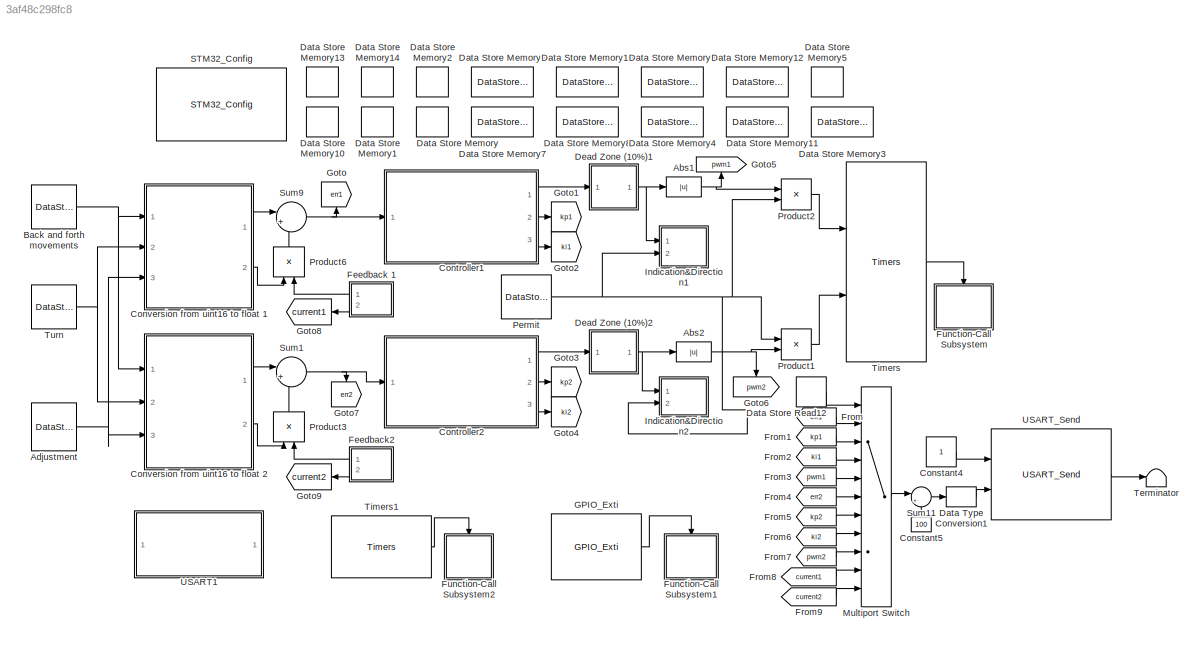
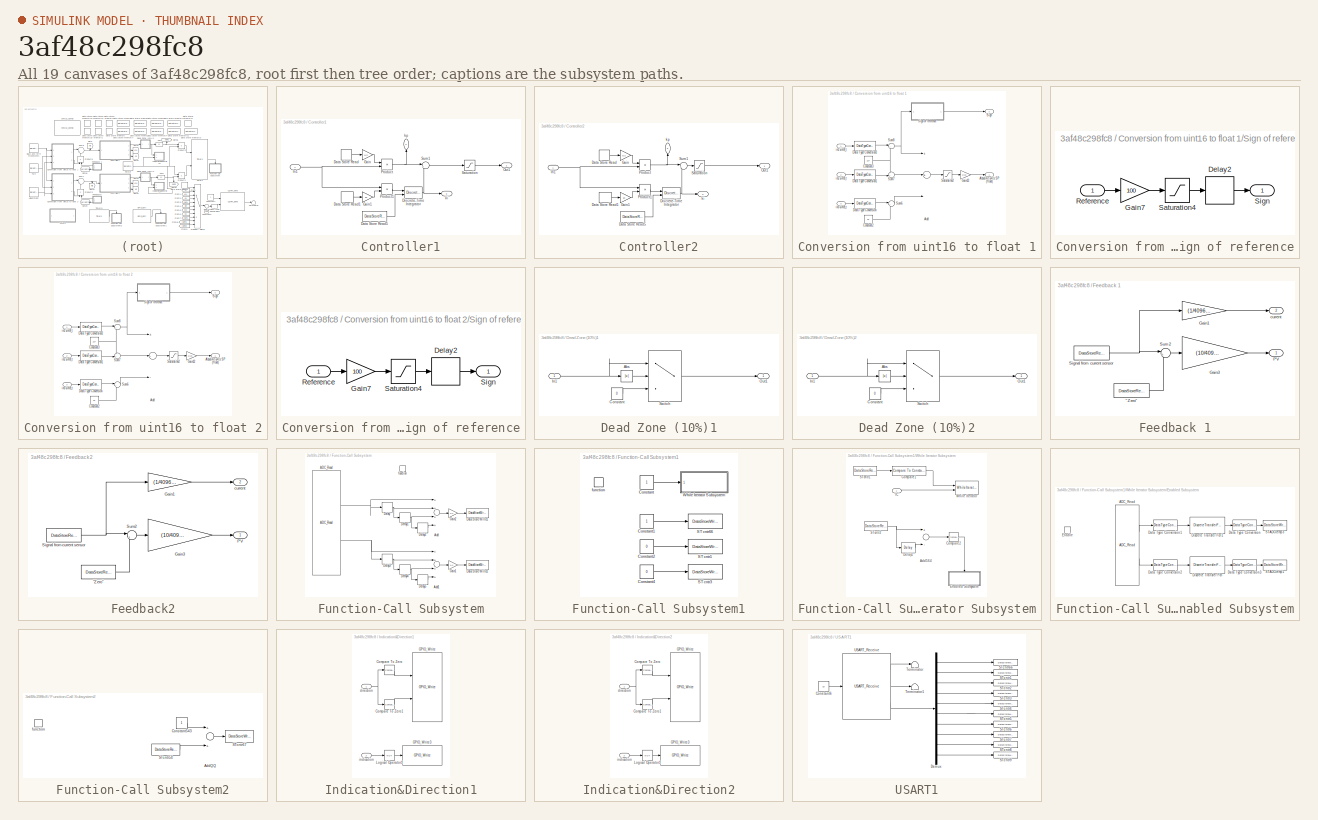
[diagram: thumbnail index - all 19 canvases of the model, root first then tree order]
MODEL slx_3af48c298fc8
KIND model
CONFIG AbsTol = auto
CONFIG EnableMultiTasking = off
CONFIG FixedStep = 0.0005
CONFIG MaxStep = auto
CONFIG MinStep = auto
CONFIG RelTol = 1e-3
CONFIG SampleTimeConstraint = Unconstrained
CONFIG Solver = FixedStepDiscrete
CONFIG SolverName = FixedStepDiscrete
CONFIG StartTime = 0.0
CONFIG StopTime = 10.0
BLOCK [Abs] Abs1
  SaturateOnIntegerOverflow = off
BLOCK [Abs] Abs2
  SaturateOnIntegerOverflow = off
BLOCK [DataStoreRead] Adjustment
  DataStoreElements = adj
  DataStoreName = adj
  Ports = [0, 1]
BLOCK [DataStoreRead] Back and forth movements
  DataStoreElements = ref
  DataStoreName = ref
  Ports = [0, 1]
BLOCK [Constant] Constant4
BLOCK [Constant] Constant5
  OutDataTypeStr = uint8
  Value = 100
BLOCK [SubSystem] Controller1
  Ports = [1, 3]
  RequestExecContextInheritance = off
BLOCK [DataStoreRead] Controller1/Data Store Read
  DataStoreElements = kp1
  DataStoreName = kp1
  Ports = [0, 1]
BLOCK [DataStoreRead] Controller1/Data Store Read1
  DataStoreElements = ki1
  DataStoreName = ki1
  Ports = [0, 1]
BLOCK [DataStoreRead] Controller1/Data Store Read5
  DataStoreElements = intgRES
  DataStoreName = intgRES
  Ports = [0, 1]
BLOCK [DiscreteIntegrator] Controller1/Discrete-Time Integrator
  ExternalReset = level
  ICPrevOutput = DiscIntNeverNeededParam
  ICPrevScaledInput = DiscIntNeverNeededParam
  InitialConditionSetting = Auto
  LimitOutput = on
  LowerSaturationLimit = -100
  Ports = [2, 1]
  SampleTime = -1
  UpperSaturationLimit = 100
BLOCK [Gain] Controller1/Gain
  Gain = 0.2
  OutDataTypeStr = single
  ParamDataTypeStr = Inherit: Inherit via internal rule
  SaturateOnIntegerOverflow = off
BLOCK [Gain] Controller1/Gain1
  Gain = 10
  OutDataTypeStr = single
  ParamDataTypeStr = Inherit: Inherit via internal rule
  SaturateOnIntegerOverflow = off
BLOCK [Inport] Controller1/In1
  IconDisplay = Port number
BLOCK [Outport] Controller1/Out1
  IconDisplay = Port number
BLOCK [Product] Controller1/Product
  InputSameDT = off
  OutDataTypeStr = double
  Ports = [2, 1]
  RndMeth = Floor
  SaturateOnIntegerOverflow = off
BLOCK [Product] Controller1/Product1
  InputSameDT = off
  OutDataTypeStr = double
  Ports = [2, 1]
  RndMeth = Floor
  SaturateOnIntegerOverflow = off
BLOCK [Saturate] Controller1/Saturation
  InputPortMap = u0
  LowerLimit = -100
  Ports = [1, 1]
  UpperLimit = 100
BLOCK [Sum] Controller1/Sum1
  IconShape = round
  InputSameDT = off
  Inputs = |++
  OutDataTypeStr = Inherit: Inherit via internal rule
  Ports = [2, 1]
  SaturateOnIntegerOverflow = off
BLOCK [Outport] Controller1/ki
  IconDisplay = Port number
  Port = 3
BLOCK [Outport] Controller1/kp
  IconDisplay = Port number
  Port = 2
BLOCK [SubSystem] Controller2
  Ports = [1, 3]
  RequestExecContextInheritance = off
BLOCK [DataStoreRead] Controller2/Data Store Read
  DataStoreElements = kp1
  DataStoreName = kp1
  Ports = [0, 1]
BLOCK [DataStoreRead] Controller2/Data Store Read1
  DataStoreElements = ki1
  DataStoreName = ki1
  Ports = [0, 1]
BLOCK [DataStoreRead] Controller2/Data Store Read5
  DataStoreElements = intgRES
  DataStoreName = intgRES
  Ports = [0, 1]
BLOCK [DiscreteIntegrator] Controller2/Discrete-Time Integrator
  ExternalReset = level
  ICPrevOutput = DiscIntNeverNeededParam
  ICPrevScaledInput = DiscIntNeverNeededParam
  InitialConditionSetting = Auto
  LimitOutput = on
  LowerSaturationLimit = -100
  Ports = [2, 1]
  SampleTime = -1
  UpperSaturationLimit = 100
BLOCK [Gain] Controller2/Gain
  Gain = 0.2
  OutDataTypeStr = single
  ParamDataTypeStr = Inherit: Inherit via internal rule
  SaturateOnIntegerOverflow = off
BLOCK [Gain] Controller2/Gain1
  Gain = 10
  OutDataTypeStr = single
  ParamDataTypeStr = Inherit: Inherit via internal rule
  SaturateOnIntegerOverflow = off
BLOCK [Inport] Controller2/In1
  IconDisplay = Port number
BLOCK [Outport] Controller2/Out1
  IconDisplay = Port number
BLOCK [Product] Controller2/Product
  InputSameDT = off
  OutDataTypeStr = double
  Ports = [2, 1]
  RndMeth = Floor
  SaturateOnIntegerOverflow = off
BLOCK [Product] Controller2/Product1
  InputSameDT = off
  OutDataTypeStr = double
  Ports = [2, 1]
  RndMeth = Floor
  SaturateOnIntegerOverflow = off
BLOCK [Saturate] Controller2/Saturation
  InputPortMap = u0
  LowerLimit = -100
  Ports = [1, 1]
  UpperLimit = 100
BLOCK [Sum] Controller2/Sum1
  IconShape = round
  InputSameDT = off
  Inputs = |++
  OutDataTypeStr = Inherit: Inherit via internal rule
  Ports = [2, 1]
  SaturateOnIntegerOverflow = off
BLOCK [Outport] Controller2/ki
  IconDisplay = Port number
  Port = 3
BLOCK [Outport] Controller2/kp
  IconDisplay = Port number
  Port = 2
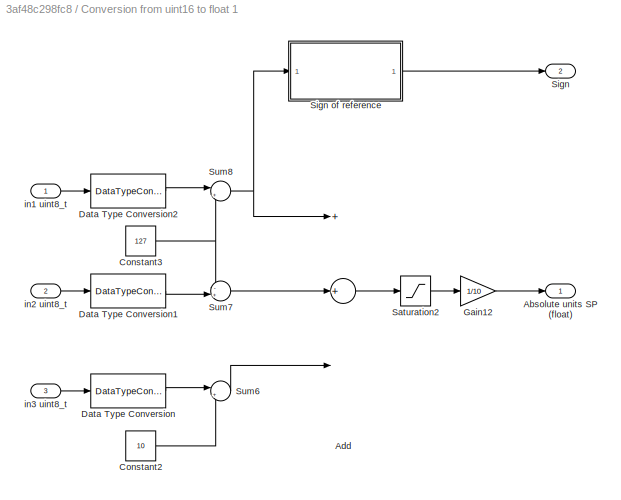
BLOCK [SubSystem] Conversion from uint16 to float 1
  Ports = [3, 2]
  RequestExecContextInheritance = off
BLOCK [Outport] Conversion from uint16 to float 1/Absolute units SP (float) 
  IconDisplay = Port number
BLOCK [Sum] Conversion from uint16 to float 1/Add
  InputSameDT = off
  Inputs = 3
  OutDataTypeStr = Inherit: Inherit via internal rule
  Ports = [3, 1]
  SaturateOnIntegerOverflow = off
BLOCK [Constant] Conversion from uint16 to float 1/Constant2
  OutDataTypeStr = single
  Value = 10
BLOCK [Constant] Conversion from uint16 to float 1/Constant3
  OutDataTypeStr = single
  Value = 127
BLOCK [DataTypeConversion] Conversion from uint16 to float 1/Data Type Conversion
  OutDataTypeStr = single
  RndMeth = Floor
  SaturateOnIntegerOverflow = off
BLOCK [DataTypeConversion] Conversion from uint16 to float 1/Data Type Conversion1
  OutDataTypeStr = single
  RndMeth = Floor
  SaturateOnIntegerOverflow = off
BLOCK [DataTypeConversion] Conversion from uint16 to float 1/Data Type Conversion2
  OutDataTypeStr = single
  RndMeth = Floor
  SaturateOnIntegerOverflow = off
BLOCK [Gain] Conversion from uint16 to float 1/Gain12
  Gain = 1/10
  OutDataTypeStr = double
  ParamDataTypeStr = Inherit: Inherit via internal rule
  SaturateOnIntegerOverflow = off
BLOCK [Saturate] Conversion from uint16 to float 1/Saturation2
  InputPortMap = u0
  LowerLimit = -127
  Ports = [1, 1]
  UpperLimit = 127
BLOCK [Outport] Conversion from uint16 to float 1/Sign
  IconDisplay = Port number
  Port = 2
BLOCK [SubSystem] Conversion from uint16 to float 1/Sign of reference
  Ports = [1, 1]
  RequestExecContextInheritance = off
BLOCK [Delay] Conversion from uint16 to float 1/Sign of reference/Delay2
  DelayLength = 1
  InitialCondition = 0
  InputPortMap = u0
  Ports = [1, 1]
BLOCK [Gain] Conversion from uint16 to float 1/Sign of reference/Gain7
  Gain = 100
  OutDataTypeStr = double
  ParamDataTypeStr = Inherit: Inherit via internal rule
  SaturateOnIntegerOverflow = off
BLOCK [Inport] Conversion from uint16 to float 1/Sign of reference/Reference
  IconDisplay = Port number
BLOCK [Saturate] Conversion from uint16 to float 1/Sign of reference/Saturation4
  InputPortMap = u0
  LowerLimit = -1
  Ports = [1, 1]
  UpperLimit = 1
BLOCK [Outport] Conversion from uint16 to float 1/Sign of reference/Sign
  IconDisplay = Port number
BLOCK [Sum] Conversion from uint16 to float 1/Sum6
  AccumDataTypeStr = double
  IconShape = round
  InputSameDT = off
  Inputs = |+-
  OutDataTypeStr = double
  Ports = [2, 1]
  SaturateOnIntegerOverflow = off
BLOCK [Sum] Conversion from uint16 to float 1/Sum7
  AccumDataTypeStr = double
  IconShape = round
  InputSameDT = off
  Inputs = -+|
  OutDataTypeStr = double
  Ports = [2, 1]
  SaturateOnIntegerOverflow = off
BLOCK [Sum] Conversion from uint16 to float 1/Sum8
  AccumDataTypeStr = double
  IconShape = round
  InputSameDT = off
  Inputs = |+-
  OutDataTypeStr = double
  Ports = [2, 1]
  SaturateOnIntegerOverflow = off
BLOCK [Inport] Conversion from uint16 to float 1/in1 uint8_t
  IconDisplay = Port number
BLOCK [Inport] Conversion from uint16 to float 1/in2 uint8_t
  IconDisplay = Port number
  Port = 2
BLOCK [Inport] Conversion from uint16 to float 1/in3 uint8_t
  IconDisplay = Port number
  Port = 3
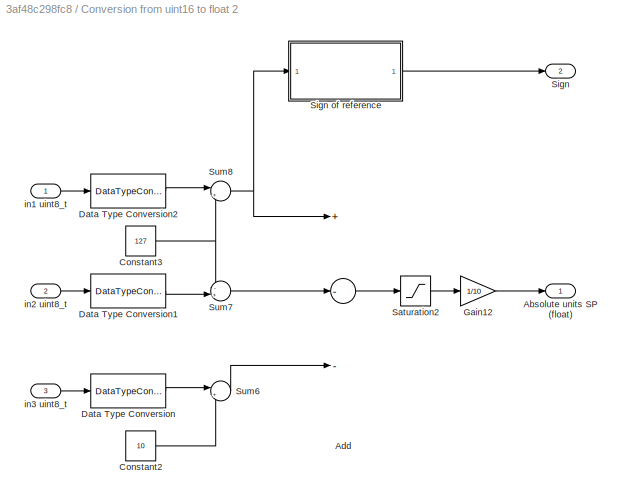
BLOCK [SubSystem] Conversion from uint16 to float 2
  Ports = [3, 2]
  RequestExecContextInheritance = off
BLOCK [Outport] Conversion from uint16 to float 2/Absolute units SP (float) 
  IconDisplay = Port number
BLOCK [Sum] Conversion from uint16 to float 2/Add
  InputSameDT = off
  Inputs = +--
  OutDataTypeStr = Inherit: Inherit via internal rule
  Ports = [3, 1]
  SaturateOnIntegerOverflow = off
BLOCK [Constant] Conversion from uint16 to float 2/Constant2
  OutDataTypeStr = single
  Value = 10
BLOCK [Constant] Conversion from uint16 to float 2/Constant3
  OutDataTypeStr = single
  Value = 127
BLOCK [DataTypeConversion] Conversion from uint16 to float 2/Data Type Conversion
  OutDataTypeStr = single
  RndMeth = Floor
  SaturateOnIntegerOverflow = off
BLOCK [DataTypeConversion] Conversion from uint16 to float 2/Data Type Conversion1
  OutDataTypeStr = single
  RndMeth = Floor
  SaturateOnIntegerOverflow = off
BLOCK [DataTypeConversion] Conversion from uint16 to float 2/Data Type Conversion2
  OutDataTypeStr = single
  RndMeth = Floor
  SaturateOnIntegerOverflow = off
BLOCK [Gain] Conversion from uint16 to float 2/Gain12
  Gain = 1/10
  OutDataTypeStr = double
  ParamDataTypeStr = Inherit: Inherit via internal rule
  SaturateOnIntegerOverflow = off
BLOCK [Saturate] Conversion from uint16 to float 2/Saturation2
  InputPortMap = u0
  LowerLimit = -127
  Ports = [1, 1]
  UpperLimit = 127
BLOCK [Outport] Conversion from uint16 to float 2/Sign
  IconDisplay = Port number
  Port = 2
BLOCK [SubSystem] Conversion from uint16 to float 2/Sign of reference
  Ports = [1, 1]
  RequestExecContextInheritance = off
BLOCK [Delay] Conversion from uint16 to float 2/Sign of reference/Delay2
  DelayLength = 1
  InitialCondition = 0
  InputPortMap = u0
  Ports = [1, 1]
BLOCK [Gain] Conversion from uint16 to float 2/Sign of reference/Gain7
  Gain = 100
  OutDataTypeStr = double
  ParamDataTypeStr = Inherit: Inherit via internal rule
  SaturateOnIntegerOverflow = off
BLOCK [Inport] Conversion from uint16 to float 2/Sign of reference/Reference
  IconDisplay = Port number
BLOCK [Saturate] Conversion from uint16 to float 2/Sign of reference/Saturation4
  InputPortMap = u0
  LowerLimit = -1
  Ports = [1, 1]
  UpperLimit = 1
BLOCK [Outport] Conversion from uint16 to float 2/Sign of reference/Sign
  IconDisplay = Port number
BLOCK [Sum] Conversion from uint16 to float 2/Sum6
  AccumDataTypeStr = double
  IconShape = round
  InputSameDT = off
  Inputs = |+-
  OutDataTypeStr = double
  Ports = [2, 1]
  SaturateOnIntegerOverflow = off
BLOCK [Sum] Conversion from uint16 to float 2/Sum7
  AccumDataTypeStr = double
  IconShape = round
  InputSameDT = off
  Inputs = -+|
  OutDataTypeStr = double
  Ports = [2, 1]
  SaturateOnIntegerOverflow = off
BLOCK [Sum] Conversion from uint16 to float 2/Sum8
  AccumDataTypeStr = double
  IconShape = round
  InputSameDT = off
  Inputs = |+-
  OutDataTypeStr = double
  Ports = [2, 1]
  SaturateOnIntegerOverflow = off
BLOCK [Inport] Conversion from uint16 to float 2/in1 uint8_t
  IconDisplay = Port number
BLOCK [Inport] Conversion from uint16 to float 2/in2 uint8_t
  IconDisplay = Port number
  Port = 2
BLOCK [Inport] Conversion from uint16 to float 2/in3 uint8_t
  IconDisplay = Port number
  Port = 3
BLOCK [DataStoreMemory] Data Store Memory
  DataStoreName = kp1
  OutDataTypeStr = uint8
  ReadBeforeWriteMsg = warning
  ShowAdditionalParam = off
  WriteAfterReadMsg = warning
  WriteAfterWriteMsg = warning
BLOCK [DataStoreMemory] Data Store Memory1
  DataStoreName = ki1
  OutDataTypeStr = uint8
  ReadBeforeWriteMsg = warning
  ShowAdditionalParam = off
  WriteAfterReadMsg = warning
  WriteAfterWriteMsg = warning
BLOCK [DataStoreMemory] Data Store Memory10
  DataStoreName = adj
  OutDataTypeStr = uint8
  ReadBeforeWriteMsg = warning
  ShowAdditionalParam = off
  WriteAfterReadMsg = warning
  WriteAfterWriteMsg = warning
BLOCK [DataStoreMemory] Data Store Memory11
  DataStoreName = ADCfb2
  OutDataTypeStr = uint16
  ReadBeforeWriteMsg = warning
  ShowAdditionalParam = off
  WriteAfterReadMsg = warning
  WriteAfterWriteMsg = warning
BLOCK [DataStoreMemory] Data Store Memory12
  DataStoreName = ADCcal2
  OutDataTypeStr = uint16
  ReadBeforeWriteMsg = warning
  ShowAdditionalParam = off
  WriteAfterReadMsg = warning
  WriteAfterWriteMsg = warning
BLOCK [DataStoreMemory] Data Store Memory13
  DataStoreName = ki2
  OutDataTypeStr = uint8
  ReadBeforeWriteMsg = warning
  ShowAdditionalParam = off
  WriteAfterReadMsg = warning
  WriteAfterWriteMsg = warning
BLOCK [DataStoreMemory] Data Store Memory14
  DataStoreName = kp2
  OutDataTypeStr = uint8
  ReadBeforeWriteMsg = warning
  ShowAdditionalParam = off
  WriteAfterReadMsg = warning
  WriteAfterWriteMsg = warning
BLOCK [DataStoreMemory] Data Store Memory15
  DataStoreName = montr
  OutDataTypeStr = uint8
  ReadBeforeWriteMsg = warning
  ShowAdditionalParam = off
  WriteAfterReadMsg = warning
  WriteAfterWriteMsg = warning
BLOCK [DataStoreMemory] Data Store Memory2
  DataStoreName = ref
  OutDataTypeStr = uint8
  ReadBeforeWriteMsg = warning
  ShowAdditionalParam = off
  WriteAfterReadMsg = warning
  WriteAfterWriteMsg = warning
BLOCK [DataStoreMemory] Data Store Memory3
  DataStoreName = ADCfb1
  OutDataTypeStr = uint16
  ReadBeforeWriteMsg = warning
  ShowAdditionalParam = off
  WriteAfterReadMsg = warning
  WriteAfterWriteMsg = warning
BLOCK [DataStoreMemory] Data Store Memory4
  DataStoreName = ADCcal1
  OutDataTypeStr = uint16
  ReadBeforeWriteMsg = warning
  ShowAdditionalParam = off
  WriteAfterReadMsg = warning
  WriteAfterWriteMsg = warning
BLOCK [DataStoreMemory] Data Store Memory5
  DataStoreName = cntr
  OutDataTypeStr = uint16
  ReadBeforeWriteMsg = warning
  ShowAdditionalParam = off
  WriteAfterReadMsg = warning
  WriteAfterWriteMsg = warning
BLOCK [DataStoreMemory] Data Store Memory6
  DataStoreName = ADCtemp
  OutDataTypeStr = uint32
  ReadBeforeWriteMsg = warning
  ShowAdditionalParam = off
  WriteAfterReadMsg = warning
  WriteAfterWriteMsg = warning
BLOCK [DataStoreMemory] Data Store Memory7
  DataStoreName = intgRES
  OutDataTypeStr = uint8
  ReadBeforeWriteMsg = warning
  ShowAdditionalParam = off
  WriteAfterReadMsg = warning
  WriteAfterWriteMsg = warning
BLOCK [DataStoreMemory] Data Store Memory8
  DataStoreName = permit
  OutDataTypeStr = uint8
  ReadBeforeWriteMsg = warning
  ShowAdditionalParam = off
  WriteAfterReadMsg = warning
  WriteAfterWriteMsg = warning
BLOCK [DataStoreMemory] Data Store Memory9
  DataStoreName = turn
  OutDataTypeStr = uint8
  ReadBeforeWriteMsg = warning
  ShowAdditionalParam = off
  WriteAfterReadMsg = warning
  WriteAfterWriteMsg = warning
BLOCK [DataStoreRead] Data Store Read12
  DataStoreElements = montr
  DataStoreName = montr
  Ports = [0, 1]
BLOCK [DataTypeConversion] Data Type Conversion1
  OutDataTypeStr = uint32
  RndMeth = Floor
  SaturateOnIntegerOverflow = off
BLOCK [SubSystem] Dead Zone (10%)1
  Ports = [1, 1]
  RequestExecContextInheritance = off
BLOCK [Abs] Dead Zone (10%)1/Abs
  SaturateOnIntegerOverflow = off
BLOCK [Constant] Dead Zone (10%)1/Constant
  Value = 0
BLOCK [Inport] Dead Zone (10%)1/In1
  IconDisplay = Port number
BLOCK [Outport] Dead Zone (10%)1/Out1
  IconDisplay = Port number
BLOCK [Switch] Dead Zone (10%)1/Switch
  Criteria = u2 > Threshold
  InputSameDT = off
  SaturateOnIntegerOverflow = off
  Threshold = 10
BLOCK [SubSystem] Dead Zone (10%)2
  Ports = [1, 1]
  RequestExecContextInheritance = off
BLOCK [Abs] Dead Zone (10%)2/Abs
  SaturateOnIntegerOverflow = off
BLOCK [Constant] Dead Zone (10%)2/Constant
  Value = 0
BLOCK [Inport] Dead Zone (10%)2/In1
  IconDisplay = Port number
BLOCK [Outport] Dead Zone (10%)2/Out1
  IconDisplay = Port number
BLOCK [Switch] Dead Zone (10%)2/Switch
  Criteria = u2 > Threshold
  InputSameDT = off
  SaturateOnIntegerOverflow = off
  Threshold = 10
BLOCK [SubSystem] Feedback 1
  Ports = [0, 2]
  RequestExecContextInheritance = off
BLOCK [DataStoreRead] Feedback 1/"Zero"
  DataStoreElements = ADCcal1
  DataStoreName = ADCcal1
  Ports = [0, 1]
BLOCK [Gain] Feedback 1/Gain1
  Gain = (1/4096)*255
  OutDataTypeStr = double
  ParamDataTypeStr = Inherit: Inherit via internal rule
  SaturateOnIntegerOverflow = off
BLOCK [Gain] Feedback 1/Gain3
  Gain = (10/4096)*3.3
  OutDataTypeStr = double
  ParamDataTypeStr = Inherit: Inherit via internal rule
  SaturateOnIntegerOverflow = off
BLOCK [Outport] Feedback 1/PV
  IconDisplay = Port number
BLOCK [DataStoreRead] Feedback 1/Signal from current sensor
  DataStoreElements = ADCfb1
  DataStoreName = ADCfb1
  Ports = [0, 1]
BLOCK [Sum] Feedback 1/Sum2
  AccumDataTypeStr = double
  IconShape = round
  InputSameDT = off
  Inputs = |+-
  OutDataTypeStr = double
  Ports = [2, 1]
  SaturateOnIntegerOverflow = off
BLOCK [Outport] Feedback 1/current
  IconDisplay = Port number
  Port = 2
BLOCK [SubSystem] Feedback2
  Ports = [0, 2]
  RequestExecContextInheritance = off
BLOCK [DataStoreRead] Feedback2/"Zero"
  DataStoreElements = ADCcal2
  DataStoreName = ADCcal2
  Ports = [0, 1]
BLOCK [Gain] Feedback2/Gain1
  Gain = (1/4096)*255
  OutDataTypeStr = double
  ParamDataTypeStr = Inherit: Inherit via internal rule
  SaturateOnIntegerOverflow = off
BLOCK [Gain] Feedback2/Gain3
  Gain = (10/4096)*3.3
  OutDataTypeStr = double
  ParamDataTypeStr = Inherit: Inherit via internal rule
  SaturateOnIntegerOverflow = off
BLOCK [Outport] Feedback2/PV
  IconDisplay = Port number
BLOCK [DataStoreRead] Feedback2/Signal from current sensor
  DataStoreElements = ADCfb2
  DataStoreName = ADCfb2
  Ports = [0, 1]
BLOCK [Sum] Feedback2/Sum2
  AccumDataTypeStr = double
  IconShape = round
  InputSameDT = off
  Inputs = |+-
  OutDataTypeStr = double
  Ports = [2, 1]
  SaturateOnIntegerOverflow = off
BLOCK [Outport] Feedback2/current
  IconDisplay = Port number
  Port = 2
BLOCK [From] From
  GotoTag = err1
BLOCK [From] From1
  GotoTag = kp1
BLOCK [From] From2
  GotoTag = ki1
BLOCK [From] From3
  GotoTag = pwm1
BLOCK [From] From4
  GotoTag = err2
BLOCK [From] From5
  GotoTag = kp2
BLOCK [From] From6
  GotoTag = ki2
BLOCK [From] From7
  GotoTag = pwm2
BLOCK [From] From8
  GotoTag = current1
BLOCK [From] From9
  GotoTag = current2
BLOCK [SubSystem] Function-Call Subsystem
  Ports = [0, 0, 0, 1]
  RequestExecContextInheritance = off
  TreatAsAtomicUnit = on
BLOCK [Reference] Function-Call Subsystem/ADC_Read  REF=ADC_Lib/ADC_Read
  Ports = [0, 2]
  SourceBlock = ADC_Lib/ADC_Read
  SourceProductName = Target Support Package - STM32 Adapter
  SourceType = ADC_Read
BLOCK [Sum] Function-Call Subsystem/Add
  InputSameDT = off
  Inputs = ++++
  OutDataTypeStr = Inherit: Inherit via internal rule
  Ports = [4, 1]
  SaturateOnIntegerOverflow = off
BLOCK [Sum] Function-Call Subsystem/Add1
  InputSameDT = off
  Inputs = ++++
  OutDataTypeStr = Inherit: Inherit via internal rule
  Ports = [4, 1]
  SaturateOnIntegerOverflow = off
BLOCK [DataStoreWrite] Function-Call Subsystem/Data Store Write1
  DataStoreElements = ADCfb1
  DataStoreName = ADCfb1
  Ports = [1]
BLOCK [DataStoreWrite] Function-Call Subsystem/Data Store Write2
  DataStoreElements = ADCfb2
  DataStoreName = ADCfb2
  Ports = [1]
BLOCK [Delay] Function-Call Subsystem/Delay
  DelayLength = 1
  InitialCondition = 0
  InputPortMap = u0
  Ports = [1, 1]
BLOCK [Delay] Function-Call Subsystem/Delay1
  DelayLength = 1
  InitialCondition = 0
  InputPortMap = u0
  Ports = [1, 1]
BLOCK [Delay] Function-Call Subsystem/Delay2
  DelayLength = 1
  InitialCondition = 0
  InputPortMap = u0
  Ports = [1, 1]
BLOCK [Delay] Function-Call Subsystem/Delay3
  DelayLength = 1
  InitialCondition = 0
  InputPortMap = u0
  Ports = [1, 1]
BLOCK [Delay] Function-Call Subsystem/Delay4
  DelayLength = 1
  InitialCondition = 0
  InputPortMap = u0
  Ports = [1, 1]
BLOCK [Delay] Function-Call Subsystem/Delay5
  DelayLength = 1
  InitialCondition = 0
  InputPortMap = u0
  Ports = [1, 1]
BLOCK [Gain] Function-Call Subsystem/Gain1
  Gain = 1/4
  OutDataTypeStr = uint16
  ParamDataTypeStr = Inherit: Inherit via internal rule
  SaturateOnIntegerOverflow = off
BLOCK [Gain] Function-Call Subsystem/Gain2
  Gain = 1/4
  OutDataTypeStr = uint16
  ParamDataTypeStr = Inherit: Inherit via internal rule
  SaturateOnIntegerOverflow = off
BLOCK [TriggerPort] Function-Call Subsystem/function
  Ports = []
  StatesWhenEnabling = held
  TriggerType = function-call
  VariantControl = Variant
BLOCK [SubSystem] Function-Call Subsystem1
  Ports = [0, 0, 0, 1]
  RequestExecContextInheritance = off
  TreatAsAtomicUnit = on
BLOCK [Constant] Function-Call Subsystem1/Constant
  OutDataTypeStr = boolean
BLOCK [Constant] Function-Call Subsystem1/Constant1
  OutDataTypeStr = uint16
BLOCK [Constant] Function-Call Subsystem1/Constant2
  OutDataTypeStr = uint16
  Value = 0
BLOCK [Constant] Function-Call Subsystem1/Constant4
  OutDataTypeStr = uint16
  Value = 0
BLOCK [DataStoreWrite] Function-Call Subsystem1/STcntr1
  DataStoreElements = ADCcal1
  DataStoreName = ADCcal1
  Ports = [1]
BLOCK [DataStoreWrite] Function-Call Subsystem1/STcntr3
  DataStoreElements = ADCcal2
  DataStoreName = ADCcal2
  Ports = [1]
BLOCK [DataStoreWrite] Function-Call Subsystem1/STcntr66
  DataStoreElements = cntr
  DataStoreName = cntr
  Ports = [1]
BLOCK [SubSystem] Function-Call Subsystem1/While Iterator Subsystem
  Ports = [1]
  RequestExecContextInheritance = off
  TreatAsAtomicUnit = on
BLOCK [Sum] Function-Call Subsystem1/While Iterator Subsystem/Add564
  InputSameDT = off
  Inputs = +-
  OutDataTypeStr = Inherit: Inherit via internal rule
  Ports = [2, 1]
  SaturateOnIntegerOverflow = off
BLOCK [Reference] Function-Call Subsystem1/While Iterator Subsystem/Compare1  REF=simulink/Logic and Bit
Operations/Compare
To Constant
  Ports = [1, 1]
  SourceBlock = simulink/Logic and Bit\nOperations/Compare\nTo Constant
  SourceProductBaseCode = SL
  SourceProductName = Simulink
  SourceType = Compare To Constant
BLOCK [Reference] Function-Call Subsystem1/While Iterator Subsystem/Compare2  REF=simulink/Logic and Bit
Operations/Compare
To Constant
  Ports = [1, 1]
  SourceBlock = simulink/Logic and Bit\nOperations/Compare\nTo Constant
  SourceProductBaseCode = SL
  SourceProductName = Simulink
  SourceType = Compare To Constant
BLOCK [Delay] Function-Call Subsystem1/While Iterator Subsystem/Delay1
  DelayLength = 1
  InitialCondition = 0
  InputPortMap = u0
  Ports = [1, 1]
BLOCK [SubSystem] Function-Call Subsystem1/While Iterator Subsystem/Enabled Subsystem
  Ports = [0, 0, 1]
  RequestExecContextInheritance = off
  TreatAsAtomicUnit = on
BLOCK [Reference] Function-Call Subsystem1/While Iterator Subsystem/Enabled Subsystem/ADC_Read  REF=ADC_Lib/ADC_Read
  Ports = [0, 2]
  SourceBlock = ADC_Lib/ADC_Read
  SourceProductName = Target Support Package - STM32 Adapter
  SourceType = ADC_Read
BLOCK [DataTypeConversion] Function-Call Subsystem1/While Iterator Subsystem/Enabled Subsystem/Data Type Conversion
  OutDataTypeStr = uint16
  RndMeth = Floor
  SaturateOnIntegerOverflow = off
BLOCK [DataTypeConversion] Function-Call Subsystem1/While Iterator Subsystem/Enabled Subsystem/Data Type Conversion1
  OutDataTypeStr = single
  RndMeth = Floor
  SaturateOnIntegerOverflow = off
BLOCK [DataTypeConversion] Function-Call Subsystem1/While Iterator Subsystem/Enabled Subsystem/Data Type Conversion2
  OutDataTypeStr = single
  RndMeth = Floor
  SaturateOnIntegerOverflow = off
BLOCK [DataTypeConversion] Function-Call Subsystem1/While Iterator Subsystem/Enabled Subsystem/Data Type Conversion3
  OutDataTypeStr = uint16
  RndMeth = Floor
  SaturateOnIntegerOverflow = off
BLOCK [DiscreteTransferFcn] Function-Call Subsystem1/While Iterator Subsystem/Enabled Subsystem/Discrete Transfer Fcn
  Denominator = [1 -0.9995]
  InputPortMap = u0
  Numerator = [0.0004999]
  Ports = [1, 1]
BLOCK [DiscreteTransferFcn] Function-Call Subsystem1/While Iterator Subsystem/Enabled Subsystem/Discrete Transfer Fcn1
  Denominator = [1 -0.9995]
  InputPortMap = u0
  Numerator = [0.0004999]
  Ports = [1, 1]
BLOCK [EnablePort] Function-Call Subsystem1/While Iterator Subsystem/Enabled Subsystem/Enable
  Ports = []
BLOCK [DataStoreWrite] Function-Call Subsystem1/While Iterator Subsystem/Enabled Subsystem/STADCtemp1
  DataStoreElements = ADCcal2
  DataStoreName = ADCcal2
  Ports = [1]
BLOCK [DataStoreWrite] Function-Call Subsystem1/While Iterator Subsystem/Enabled Subsystem/STADCtemp3
  DataStoreElements = ADCcal1
  DataStoreName = ADCcal1
  Ports = [1]
BLOCK [Inport] Function-Call Subsystem1/While Iterator Subsystem/IC
  IconDisplay = Port number
BLOCK [DataStoreRead] Function-Call Subsystem1/While Iterator Subsystem/STcntr1
  DataStoreElements = cntr
  DataStoreName = cntr
  Ports = [0, 1]
BLOCK [DataStoreRead] Function-Call Subsystem1/While Iterator Subsystem/STcntr2
  DataStoreElements = cntr
  DataStoreName = cntr
  Ports = [0, 1]
BLOCK [WhileIterator] Function-Call Subsystem1/While Iterator Subsystem/While Iterator
  MaxIters = 1000000000
  Ports = [2]
BLOCK [TriggerPort] Function-Call Subsystem1/function
  Ports = []
  StatesWhenEnabling = held
  TriggerType = function-call
  VariantControl = Variant
BLOCK [SubSystem] Function-Call Subsystem2
  Ports = [0, 0, 0, 1]
  RequestExecContextInheritance = off
  TreatAsAtomicUnit = on
BLOCK [Sum] Function-Call Subsystem2/AddQQ
  InputSameDT = off
  OutDataTypeStr = Inherit: Inherit via internal rule
  Ports = [2, 1]
  SaturateOnIntegerOverflow = off
BLOCK [Constant] Function-Call Subsystem2/Constant543
  OutDataTypeStr = uint8
BLOCK [DataStoreRead] Function-Call Subsystem2/STcntr54
  DataStoreElements = cntr
  DataStoreName = cntr
  Ports = [0, 1]
BLOCK [DataStoreWrite] Function-Call Subsystem2/STcntr67
  DataStoreElements = cntr
  DataStoreName = cntr
  Ports = [1]
BLOCK [TriggerPort] Function-Call Subsystem2/function
  Ports = []
  StatesWhenEnabling = held
  TriggerType = function-call
  VariantControl = Variant
BLOCK [Reference] GPIO_Exti  REF=GPIO_Lib/GPIO_Exti
  Ports = [0, 1]
  SourceBlock = GPIO_Lib/GPIO_Exti
  SourceProductName = Target Support Package - STM32 Adapter
  SourceType = GPIO_Exti
BLOCK [Goto] Goto
  GotoTag = err1
BLOCK [Goto] Goto1
  GotoTag = kp1
BLOCK [Goto] Goto2
  GotoTag = ki1
BLOCK [Goto] Goto3
  GotoTag = kp2
BLOCK [Goto] Goto4
  GotoTag = ki2
BLOCK [Goto] Goto5
  GotoTag = pwm1
BLOCK [Goto] Goto6
  GotoTag = pwm2
BLOCK [Goto] Goto7
  GotoTag = err2
BLOCK [Goto] Goto8
  GotoTag = current1
BLOCK [Goto] Goto9
  GotoTag = current2
BLOCK [SubSystem] Indication&Direction1
  Ports = [2]
  RequestExecContextInheritance = off
BLOCK [Reference] Indication&Direction1/Compare To Zero  REF=simulink/Logic and Bit
Operations/Compare
To Zero
  Ports = [1, 1]
  SourceBlock = simulink/Logic and Bit\nOperations/Compare\nTo Zero
  SourceProductBaseCode = SL
  SourceProductName = Simulink
  SourceType = Compare To Zero
BLOCK [Reference] Indication&Direction1/Compare To Zero1  REF=simulink/Logic and Bit
Operations/Compare
To Zero
  Ports = [1, 1]
  SourceBlock = simulink/Logic and Bit\nOperations/Compare\nTo Zero
  SourceProductBaseCode = SL
  SourceProductName = Simulink
  SourceType = Compare To Zero
BLOCK [Reference] Indication&Direction1/GPIO_Write  REF=GPIO_Lib/GPIO_Write
  Ports = [2]
  SourceBlock = GPIO_Lib/GPIO_Write
  SourceProductName = Target Support Package - STM32 Adapter
  SourceType = GPIO_Write
BLOCK [Reference] Indication&Direction1/GPIO_Write3  REF=GPIO_Lib/GPIO_Write
  Ports = [1]
  SourceBlock = GPIO_Lib/GPIO_Write
  SourceProductName = Target Support Package - STM32 Adapter
  SourceType = GPIO_Write
BLOCK [Logic] Indication&Direction1/Logical Operator1
  AllPortsSameDT = off
  Operator = NOT
  OutDataTypeStr = boolean
  Ports = [1, 1]
BLOCK [Inport] Indication&Direction1/direction
  IconDisplay = Port number
BLOCK [Inport] Indication&Direction1/indication
  IconDisplay = Port number
  Port = 2
BLOCK [SubSystem] Indication&Direction2
  Ports = [2]
  RequestExecContextInheritance = off
BLOCK [Reference] Indication&Direction2/Compare To Zero  REF=simulink/Logic and Bit
Operations/Compare
To Zero
  Ports = [1, 1]
  SourceBlock = simulink/Logic and Bit\nOperations/Compare\nTo Zero
  SourceProductBaseCode = SL
  SourceProductName = Simulink
  SourceType = Compare To Zero
BLOCK [Reference] Indication&Direction2/Compare To Zero1  REF=simulink/Logic and Bit
Operations/Compare
To Zero
  Ports = [1, 1]
  SourceBlock = simulink/Logic and Bit\nOperations/Compare\nTo Zero
  SourceProductBaseCode = SL
  SourceProductName = Simulink
  SourceType = Compare To Zero
BLOCK [Reference] Indication&Direction2/GPIO_Write  REF=GPIO_Lib/GPIO_Write
  Ports = [2]
  SourceBlock = GPIO_Lib/GPIO_Write
  SourceProductName = Target Support Package - STM32 Adapter
  SourceType = GPIO_Write
BLOCK [Reference] Indication&Direction2/GPIO_Write3  REF=GPIO_Lib/GPIO_Write
  Ports = [1]
  SourceBlock = GPIO_Lib/GPIO_Write
  SourceProductName = Target Support Package - STM32 Adapter
  SourceType = GPIO_Write
BLOCK [Logic] Indication&Direction2/Logical Operator1
  AllPortsSameDT = off
  Operator = NOT
  OutDataTypeStr = boolean
  Ports = [1, 1]
BLOCK [Inport] Indication&Direction2/direction
  IconDisplay = Port number
BLOCK [Inport] Indication&Direction2/indication
  IconDisplay = Port number
  Port = 2
BLOCK [MultiPortSwitch] Multiport Switch
  InputSameDT = off
  Inputs = 10
  OutDataTypeStr = uint8
  Ports = [11, 1]
  SaturateOnIntegerOverflow = off
BLOCK [DataStoreRead] Permit
  DataStoreElements = permit
  DataStoreName = permit
  Ports = [0, 1]
BLOCK [Product] Product1
  InputSameDT = off
  OutDataTypeStr = Inherit: Inherit via internal rule
  Ports = [2, 1]
  RndMeth = Floor
  SaturateOnIntegerOverflow = off
BLOCK [Product] Product2
  InputSameDT = off
  OutDataTypeStr = Inherit: Inherit via internal rule
  Ports = [2, 1]
  RndMeth = Floor
  SaturateOnIntegerOverflow = off
BLOCK [Product] Product3
  InputSameDT = off
  OutDataTypeStr = double
  Ports = [2, 1]
  RndMeth = Floor
  SaturateOnIntegerOverflow = off
BLOCK [Product] Product6
  InputSameDT = off
  OutDataTypeStr = double
  Ports = [2, 1]
  RndMeth = Floor
  SaturateOnIntegerOverflow = off
BLOCK [Reference] STM32_Config  REF=STM32_Config_Lib/STM32_Config
  Ports = []
  Priority = 0
  SourceBlock = STM32_Config_Lib/STM32_Config
  SourceProductName = Target Support Package - STM32 Adapter
  SourceType = STM32_Config
BLOCK [Sum] Sum1
  AccumDataTypeStr = double
  IconShape = round
  InputSameDT = off
  Inputs = |+-
  OutDataTypeStr = double
  Ports = [2, 1]
  SaturateOnIntegerOverflow = off
BLOCK [Sum] Sum11
  AccumDataTypeStr = double
  IconShape = round
  InputSameDT = off
  Inputs = |++
  OutDataTypeStr = double
  Ports = [2, 1]
  SaturateOnIntegerOverflow = off
BLOCK [Sum] Sum9
  AccumDataTypeStr = double
  IconShape = round
  InputSameDT = off
  Inputs = |+-
  OutDataTypeStr = double
  Ports = [2, 1]
  SaturateOnIntegerOverflow = off
BLOCK [Terminator] Terminator
BLOCK [Reference] Timers  REF=TIMERS_Lib/Timers
  Ports = [2, 1]
  SourceBlock = TIMERS_Lib/Timers
  SourceProductName = Target Support Package - STM32 Adapter
  SourceType = Timers
BLOCK [Reference] Timers1  REF=TIMERS_Lib/Timers
  Ports = [0, 1]
  SourceBlock = TIMERS_Lib/Timers
  SourceProductName = Target Support Package - STM32 Adapter
  SourceType = Timers
BLOCK [DataStoreRead] Turn
  DataStoreElements = turn
  DataStoreName = turn
  Ports = [0, 1]
BLOCK [SubSystem] USART1
  Ports = []
  RequestExecContextInheritance = off
BLOCK [Constant] USART1/Constant6
  OutDataTypeStr = uint8
  Value = 10
BLOCK [Demux] USART1/Demux
  DisplayOption = bar
  Outputs = 10
  Ports = [1, 10]
BLOCK [DataStoreWrite] USART1/STcntr1
  DataStoreElements = kp1
  DataStoreName = kp1
  Ports = [1]
BLOCK [DataStoreWrite] USART1/STcntr2
  DataStoreElements = ki1
  DataStoreName = ki1
  Ports = [1]
BLOCK [DataStoreWrite] USART1/STcntr3
  DataStoreElements = intgRES
  DataStoreName = intgRES
  Ports = [1]
BLOCK [DataStoreWrite] USART1/STcntr4
  DataStoreElements = permit
  DataStoreName = permit
  Ports = [1]
BLOCK [DataStoreWrite] USART1/STcntr5
  DataStoreElements = kp2
  DataStoreName = kp2
  Ports = [1]
BLOCK [DataStoreWrite] USART1/STcntr6
  DataStoreElements = ki2
  DataStoreName = ki2
  Ports = [1]
BLOCK [DataStoreWrite] USART1/STcntr66
  DataStoreElements = ref
  DataStoreName = ref
  Ports = [1]
BLOCK [DataStoreWrite] USART1/STcntr7
  DataStoreElements = turn
  DataStoreName = turn
  Ports = [1]
BLOCK [DataStoreWrite] USART1/STcntr8
  DataStoreElements = adj
  DataStoreName = adj
  Ports = [1]
BLOCK [DataStoreWrite] USART1/STcntr9
  DataStoreElements = montr
  DataStoreName = montr
  Ports = [1]
BLOCK [Terminator] USART1/Terminator
BLOCK [Terminator] USART1/Terminator1
BLOCK [Reference] USART1/USART_Receive  REF=USART_Lib/USART_Receive
  Ports = [1, 3]
  SourceBlock = USART_Lib/USART_Receive
  SourceProductName = Target Support Package - STM32 Adapter
  SourceType = USART_Receive
BLOCK [Reference] USART_Send  REF=USART_Lib/USART_Send
  Ports = [2, 1]
  SourceBlock = USART_Lib/USART_Send
  SourceProductName = Target Support Package - STM32 Adapter
  SourceType = USART_Send
NET Abs1:1 -> Goto5:1, Product2:1
NET Abs2:1 -> Goto6:1, Product1:2
NET Adjustment:1 -> Conversion from uint16 to float 1:3, Conversion from uint16 to float 2:3
NET Back and forth movements:1 -> Conversion from uint16 to float 1:1, Conversion from uint16 to float 2:1
LINE Constant4:1 -> USART_Send:1
LINE Constant5:1 -> Sum11:2
LINE Controller1/Data Store Read1:1 -> Controller1/Gain1:1
LINE Controller1/Data Store Read5:1 -> Controller1/Discrete-Time Integrator:2
LINE Controller1/Data Store Read:1 -> Controller1/Gain:1
NET Controller1/Discrete-Time Integrator:1 -> Controller1/Sum1:2, Controller1/ki:1
LINE Controller1/Gain1:1 -> Controller1/Product1:2
LINE Controller1/Gain:1 -> Controller1/Product:1
NET Controller1/In1:1 -> Controller1/Product1:1, Controller1/Product:2
LINE Controller1/Product1:1 -> Controller1/Discrete-Time Integrator:1
NET Controller1/Product:1 -> Controller1/Sum1:1, Controller1/kp:1
LINE Controller1/Saturation:1 -> Controller1/Out1:1
LINE Controller1/Sum1:1 -> Controller1/Saturation:1
LINE Controller1:1 -> Dead Zone (10%)1:1
LINE Controller1:2 -> Goto1:1
LINE Controller1:3 -> Goto2:1
LINE Controller2/Data Store Read1:1 -> Controller2/Gain1:1
LINE Controller2/Data Store Read5:1 -> Controller2/Discrete-Time Integrator:2
LINE Controller2/Data Store Read:1 -> Controller2/Gain:1
NET Controller2/Discrete-Time Integrator:1 -> Controller2/Sum1:2, Controller2/ki:1
LINE Controller2/Gain1:1 -> Controller2/Product1:2
LINE Controller2/Gain:1 -> Controller2/Product:1
NET Controller2/In1:1 -> Controller2/Product1:1, Controller2/Product:2
LINE Controller2/Product1:1 -> Controller2/Discrete-Time Integrator:1
NET Controller2/Product:1 -> Controller2/Sum1:1, Controller2/kp:1
LINE Controller2/Saturation:1 -> Controller2/Out1:1
LINE Controller2/Sum1:1 -> Controller2/Saturation:1
LINE Controller2:1 -> Dead Zone (10%)2:1
LINE Controller2:2 -> Goto3:1
LINE Controller2:3 -> Goto4:1
LINE Conversion from uint16 to float 1/Add:1 -> Conversion from uint16 to float 1/Saturation2:1
LINE Conversion from uint16 to float 1/Constant2:1 -> Conversion from uint16 to float 1/Sum6:2
NET Conversion from uint16 to float 1/Constant3:1 -> Conversion from uint16 to float 1/Sum7:1, Conversion from uint16 to float 1/Sum8:2
LINE Conversion from uint16 to float 1/Data Type Conversion1:1 -> Conversion from uint16 to float 1/Sum7:2
LINE Conversion from uint16 to float 1/Data Type Conversion2:1 -> Conversion from uint16 to float 1/Sum8:1
LINE Conversion from uint16 to float 1/Data Type Conversion:1 -> Conversion from uint16 to float 1/Sum6:1
LINE Conversion from uint16 to float 1/Gain12:1 -> Conversion from uint16 to float 1/Absolute units SP (float) :1
LINE Conversion from uint16 to float 1/Saturation2:1 -> Conversion from uint16 to float 1/Gain12:1
LINE Conversion from uint16 to float 1/Sign of reference/Delay2:1 -> Conversion from uint16 to float 1/Sign of reference/Sign:1
LINE Conversion from uint16 to float 1/Sign of reference/Gain7:1 -> Conversion from uint16 to float 1/Sign of reference/Saturation4:1
LINE Conversion from uint16 to float 1/Sign of reference/Reference:1 -> Conversion from uint16 to float 1/Sign of reference/Gain7:1
LINE Conversion from uint16 to float 1/Sign of reference/Saturation4:1 -> Conversion from uint16 to float 1/Sign of reference/Delay2:1
LINE Conversion from uint16 to float 1/Sign of reference:1 -> Conversion from uint16 to float 1/Sign:1
LINE Conversion from uint16 to float 1/Sum6:1 -> Conversion from uint16 to float 1/Add:3
LINE Conversion from uint16 to float 1/Sum7:1 -> Conversion from uint16 to float 1/Add:2
NET Conversion from uint16 to float 1/Sum8:1 -> Conversion from uint16 to float 1/Add:1, Conversion from uint16 to float 1/Sign of reference:1
LINE Conversion from uint16 to float 1/in1 uint8_t:1 -> Conversion from uint16 to float 1/Data Type Conversion2:1
LINE Conversion from uint16 to float 1/in2 uint8_t:1 -> Conversion from uint16 to float 1/Data Type Conversion1:1
LINE Conversion from uint16 to float 1/in3 uint8_t:1 -> Conversion from uint16 to float 1/Data Type Conversion:1
LINE Conversion from uint16 to float 1:1 -> Sum9:1
LINE Conversion from uint16 to float 1:2 -> Product6:1
LINE Conversion from uint16 to float 2/Add:1 -> Conversion from uint16 to float 2/Saturation2:1
LINE Conversion from uint16 to float 2/Constant2:1 -> Conversion from uint16 to float 2/Sum6:2
NET Conversion from uint16 to float 2/Constant3:1 -> Conversion from uint16 to float 2/Sum7:1, Conversion from uint16 to float 2/Sum8:2
LINE Conversion from uint16 to float 2/Data Type Conversion1:1 -> Conversion from uint16 to float 2/Sum7:2
LINE Conversion from uint16 to float 2/Data Type Conversion2:1 -> Conversion from uint16 to float 2/Sum8:1
LINE Conversion from uint16 to float 2/Data Type Conversion:1 -> Conversion from uint16 to float 2/Sum6:1
LINE Conversion from uint16 to float 2/Gain12:1 -> Conversion from uint16 to float 2/Absolute units SP (float) :1
LINE Conversion from uint16 to float 2/Saturation2:1 -> Conversion from uint16 to float 2/Gain12:1
LINE Conversion from uint16 to float 2/Sign of reference/Delay2:1 -> Conversion from uint16 to float 2/Sign of reference/Sign:1
LINE Conversion from uint16 to float 2/Sign of reference/Gain7:1 -> Conversion from uint16 to float 2/Sign of reference/Saturation4:1
LINE Conversion from uint16 to float 2/Sign of reference/Reference:1 -> Conversion from uint16 to float 2/Sign of reference/Gain7:1
LINE Conversion from uint16 to float 2/Sign of reference/Saturation4:1 -> Conversion from uint16 to float 2/Sign of reference/Delay2:1
LINE Conversion from uint16 to float 2/Sign of reference:1 -> Conversion from uint16 to float 2/Sign:1
LINE Conversion from uint16 to float 2/Sum6:1 -> Conversion from uint16 to float 2/Add:3
LINE Conversion from uint16 to float 2/Sum7:1 -> Conversion from uint16 to float 2/Add:2
NET Conversion from uint16 to float 2/Sum8:1 -> Conversion from uint16 to float 2/Add:1, Conversion from uint16 to float 2/Sign of reference:1
LINE Conversion from uint16 to float 2/in1 uint8_t:1 -> Conversion from uint16 to float 2/Data Type Conversion2:1
LINE Conversion from uint16 to float 2/in2 uint8_t:1 -> Conversion from uint16 to float 2/Data Type Conversion1:1
LINE Conversion from uint16 to float 2/in3 uint8_t:1 -> Conversion from uint16 to float 2/Data Type Conversion:1
LINE Conversion from uint16 to float 2:1 -> Sum1:1
LINE Conversion from uint16 to float 2:2 -> Product3:1
LINE Data Store Read12:1 -> Multiport Switch:1
LINE Data Type Conversion1:1 -> USART_Send:2
LINE Dead Zone (10%)1/Abs:1 -> Dead Zone (10%)1/Switch:2
LINE Dead Zone (10%)1/Constant:1 -> Dead Zone (10%)1/Switch:3
NET Dead Zone (10%)1/In1:1 -> Dead Zone (10%)1/Abs:1, Dead Zone (10%)1/Switch:1
LINE Dead Zone (10%)1/Switch:1 -> Dead Zone (10%)1/Out1:1
NET Dead Zone (10%)1:1 -> Abs1:1, Indication&Direction1:1
LINE Dead Zone (10%)2/Abs:1 -> Dead Zone (10%)2/Switch:2
LINE Dead Zone (10%)2/Constant:1 -> Dead Zone (10%)2/Switch:3
NET Dead Zone (10%)2/In1:1 -> Dead Zone (10%)2/Abs:1, Dead Zone (10%)2/Switch:1
LINE Dead Zone (10%)2/Switch:1 -> Dead Zone (10%)2/Out1:1
NET Dead Zone (10%)2:1 -> Abs2:1, Indication&Direction2:1
LINE Feedback 1/"Zero":1 -> Feedback 1/Sum2:2
LINE Feedback 1/Gain1:1 -> Feedback 1/current:1
LINE Feedback 1/Gain3:1 -> Feedback 1/PV:1
NET Feedback 1/Signal from current sensor:1 -> Feedback 1/Gain1:1, Feedback 1/Sum2:1
LINE Feedback 1/Sum2:1 -> Feedback 1/Gain3:1
LINE Feedback 1:1 -> Product6:2
LINE Feedback 1:2 -> Goto8:1
LINE Feedback2/"Zero":1 -> Feedback2/Sum2:2
LINE Feedback2/Gain1:1 -> Feedback2/current:1
LINE Feedback2/Gain3:1 -> Feedback2/PV:1
NET Feedback2/Signal from current sensor:1 -> Feedback2/Gain1:1, Feedback2/Sum2:1
LINE Feedback2/Sum2:1 -> Feedback2/Gain3:1
LINE Feedback2:1 -> Product3:2
LINE Feedback2:2 -> Goto9:1
LINE From1:1 -> Multiport Switch:3
LINE From2:1 -> Multiport Switch:4
LINE From3:1 -> Multiport Switch:5
LINE From4:1 -> Multiport Switch:6
LINE From5:1 -> Multiport Switch:7
LINE From6:1 -> Multiport Switch:8
LINE From7:1 -> Multiport Switch:9
LINE From8:1 -> Multiport Switch:10
LINE From9:1 -> Multiport Switch:11
LINE From:1 -> Multiport Switch:2
NET Function-Call Subsystem/ADC_Read:1 -> Function-Call Subsystem/Add:1, Function-Call Subsystem/Delay:1
NET Function-Call Subsystem/ADC_Read:2 -> Function-Call Subsystem/Add1:1, Function-Call Subsystem/Delay3:1
LINE Function-Call Subsystem/Add1:1 -> Function-Call Subsystem/Gain1:1
LINE Function-Call Subsystem/Add:1 -> Function-Call Subsystem/Gain2:1
NET Function-Call Subsystem/Delay1:1 -> Function-Call Subsystem/Add:3, Function-Call Subsystem/Delay2:1
LINE Function-Call Subsystem/Delay2:1 -> Function-Call Subsystem/Add:4
NET Function-Call Subsystem/Delay3:1 -> Function-Call Subsystem/Add1:2, Function-Call Subsystem/Delay4:1
NET Function-Call Subsystem/Delay4:1 -> Function-Call Subsystem/Add1:3, Function-Call Subsystem/Delay5:1
LINE Function-Call Subsystem/Delay5:1 -> Function-Call Subsystem/Add1:4
NET Function-Call Subsystem/Delay:1 -> Function-Call Subsystem/Add:2, Function-Call Subsystem/Delay1:1
LINE Function-Call Subsystem/Gain1:1 -> Function-Call Subsystem/Data Store Write2:1
LINE Function-Call Subsystem/Gain2:1 -> Function-Call Subsystem/Data Store Write1:1
LINE Function-Call Subsystem1/Constant1:1 -> Function-Call Subsystem1/STcntr66:1
LINE Function-Call Subsystem1/Constant2:1 -> Function-Call Subsystem1/STcntr1:1
LINE Function-Call Subsystem1/Constant4:1 -> Function-Call Subsystem1/STcntr3:1
LINE Function-Call Subsystem1/Constant:1 -> Function-Call Subsystem1/While Iterator Subsystem:1
LINE Function-Call Subsystem1/While Iterator Subsystem/Add564:1 -> Function-Call Subsystem1/While Iterator Subsystem/Compare2:1
LINE Function-Call Subsystem1/While Iterator Subsystem/Compare1:1 -> Function-Call Subsystem1/While Iterator Subsystem/While Iterator:1
LINE Function-Call Subsystem1/While Iterator Subsystem/Compare2:1 -> Function-Call Subsystem1/While Iterator Subsystem/Enabled Subsystem:enable
LINE Function-Call Subsystem1/While Iterator Subsystem/Delay1:1 -> Function-Call Subsystem1/While Iterator Subsystem/Add564:2
LINE Function-Call Subsystem1/While Iterator Subsystem/Enabled Subsystem/ADC_Read:1 -> Function-Call Subsystem1/While Iterator Subsystem/Enabled Subsystem/Data Type Conversion1:1
LINE Function-Call Subsystem1/While Iterator Subsystem/Enabled Subsystem/ADC_Read:2 -> Function-Call Subsystem1/While Iterator Subsystem/Enabled Subsystem/Data Type Conversion2:1
LINE Function-Call Subsystem1/While Iterator Subsystem/Enabled Subsystem/Data Type Conversion1:1 -> Function-Call Subsystem1/While Iterator Subsystem/Enabled Subsystem/Discrete Transfer Fcn1:1
LINE Function-Call Subsystem1/While Iterator Subsystem/Enabled Subsystem/Data Type Conversion2:1 -> Function-Call Subsystem1/While Iterator Subsystem/Enabled Subsystem/Discrete Transfer Fcn:1
LINE Function-Call Subsystem1/While Iterator Subsystem/Enabled Subsystem/Data Type Conversion3:1 -> Function-Call Subsystem1/While Iterator Subsystem/Enabled Subsystem/STADCtemp1:1
LINE Function-Call Subsystem1/While Iterator Subsystem/Enabled Subsystem/Data Type Conversion:1 -> Function-Call Subsystem1/While Iterator Subsystem/Enabled Subsystem/STADCtemp3:1
LINE Function-Call Subsystem1/While Iterator Subsystem/Enabled Subsystem/Discrete Transfer Fcn1:1 -> Function-Call Subsystem1/While Iterator Subsystem/Enabled Subsystem/Data Type Conversion:1
LINE Function-Call Subsystem1/While Iterator Subsystem/Enabled Subsystem/Discrete Transfer Fcn:1 -> Function-Call Subsystem1/While Iterator Subsystem/Enabled Subsystem/Data Type Conversion3:1
LINE Function-Call Subsystem1/While Iterator Subsystem/IC:1 -> Function-Call Subsystem1/While Iterator Subsystem/While Iterator:2
LINE Function-Call Subsystem1/While Iterator Subsystem/STcntr1:1 -> Function-Call Subsystem1/While Iterator Subsystem/Compare1:1
NET Function-Call Subsystem1/While Iterator Subsystem/STcntr2:1 -> Function-Call Subsystem1/While Iterator Subsystem/Add564:1, Function-Call Subsystem1/While Iterator Subsystem/Delay1:1
LINE Function-Call Subsystem2/AddQQ:1 -> Function-Call Subsystem2/STcntr67:1
LINE Function-Call Subsystem2/Constant543:1 -> Function-Call Subsystem2/AddQQ:1
LINE Function-Call Subsystem2/STcntr54:1 -> Function-Call Subsystem2/AddQQ:2
LINE GPIO_Exti:1 -> Function-Call Subsystem1:trigger
LINE Indication&Direction1/Compare To Zero1:1 -> Indication&Direction1/GPIO_Write:2
LINE Indication&Direction1/Compare To Zero:1 -> Indication&Direction1/GPIO_Write:1
LINE Indication&Direction1/Logical Operator1:1 -> Indication&Direction1/GPIO_Write3:1
NET Indication&Direction1/direction:1 -> Indication&Direction1/Compare To Zero1:1, Indication&Direction1/Compare To Zero:1
LINE Indication&Direction1/indication:1 -> Indication&Direction1/Logical Operator1:1
LINE Indication&Direction2/Compare To Zero1:1 -> Indication&Direction2/GPIO_Write:2
LINE Indication&Direction2/Compare To Zero:1 -> Indication&Direction2/GPIO_Write:1
LINE Indication&Direction2/Logical Operator1:1 -> Indication&Direction2/GPIO_Write3:1
NET Indication&Direction2/direction:1 -> Indication&Direction2/Compare To Zero1:1, Indication&Direction2/Compare To Zero:1
LINE Indication&Direction2/indication:1 -> Indication&Direction2/Logical Operator1:1
LINE Multiport Switch:1 -> Sum11:1
NET Permit:1 -> Indication&Direction1:2, Indication&Direction2:2, Product1:1, Product2:2
LINE Product1:1 -> Timers:2
LINE Product2:1 -> Timers:1
LINE Product3:1 -> Sum1:2
LINE Product6:1 -> Sum9:2
LINE Sum11:1 -> Data Type Conversion1:1
NET Sum1:1 -> Controller2:1, Goto7:1
NET Sum9:1 -> Controller1:1, Goto:1
LINE Timers1:1 -> Function-Call Subsystem2:trigger
LINE Timers:1 -> Function-Call Subsystem:trigger
NET Turn:1 -> Conversion from uint16 to float 1:2, Conversion from uint16 to float 2:2
LINE USART1/Constant6:1 -> USART1/USART_Receive:1
LINE USART1/Demux:1 -> USART1/STcntr66:1
LINE USART1/Demux:10 -> USART1/STcntr9:1
LINE USART1/Demux:2 -> USART1/STcntr1:1
LINE USART1/Demux:3 -> USART1/STcntr2:1
LINE USART1/Demux:4 -> USART1/STcntr3:1
LINE USART1/Demux:5 -> USART1/STcntr4:1
LINE USART1/Demux:6 -> USART1/STcntr5:1
LINE USART1/Demux:7 -> USART1/STcntr6:1
LINE USART1/Demux:8 -> USART1/STcntr7:1
LINE USART1/Demux:9 -> USART1/STcntr8:1
LINE USART1/USART_Receive:1 -> USART1/Terminator:1
LINE USART1/USART_Receive:2 -> USART1/Terminator1:1
LINE USART1/USART_Receive:3 -> USART1/Demux:1
LINE USART_Send:1 -> Terminator:1
note: NET lines group one-source signal fan-out (src -> all destinations, sorted); 1:1 wires keep LINE
